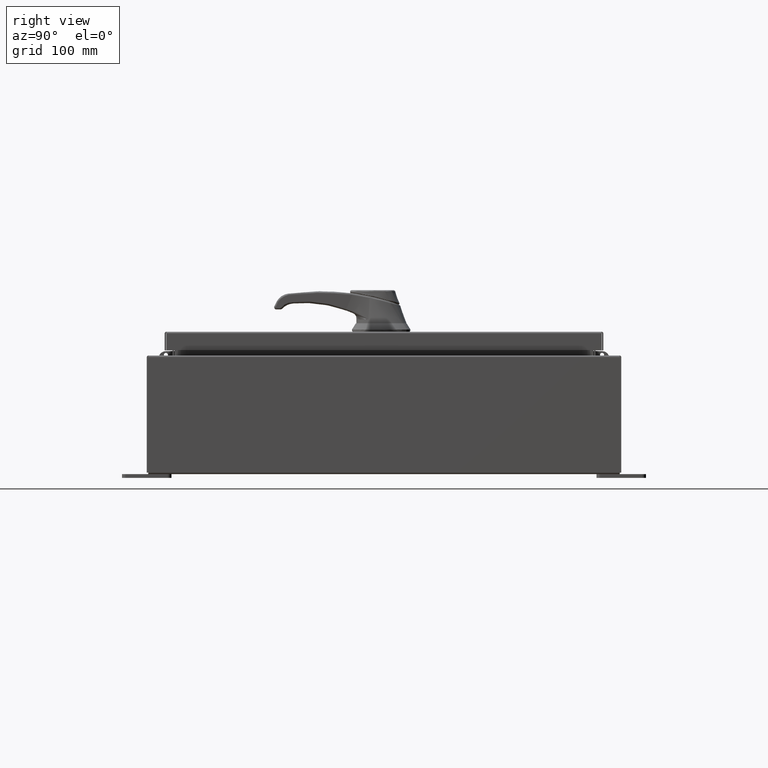
[diagram: clean part render]
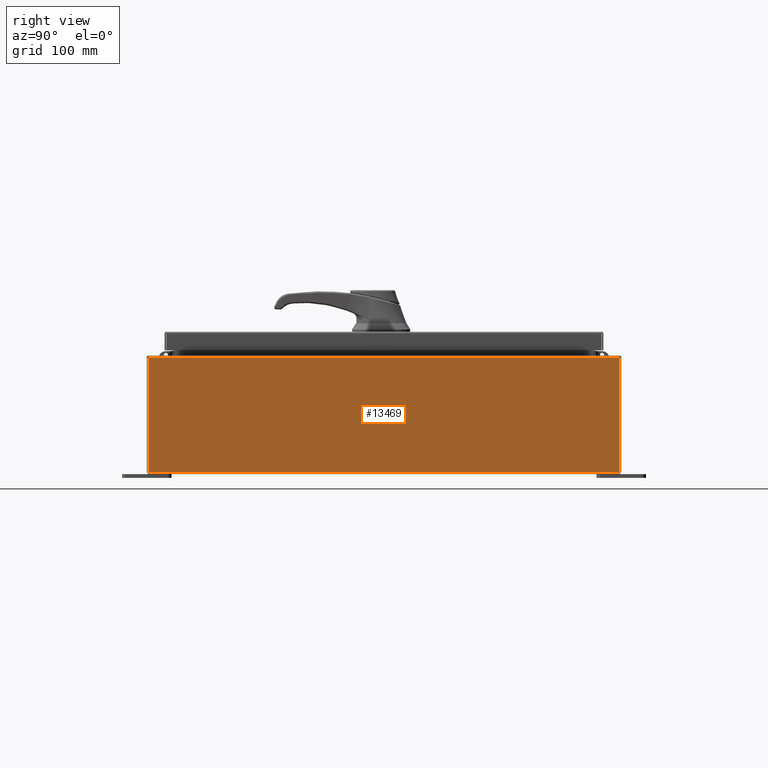
[diagram: same view with one face highlighted and labeled with its STEP entity id]
A machine part, right view. The second image highlights one B-rep face of the part: STEP entity #13469.
In plain terms, the highlighted planar face has unit normal (-1, 0, 0).
Its self-contained STEP definition (entity closure, byte-faithful):
#660 = EDGE_CURVE ( 'NONE', #19925, #47299, #36692, .T. ) ;
#3230 = VECTOR ( 'NONE', #99781, 39.37007874015748100 ) ;
#7395 = ORIENTED_EDGE ( 'NONE', *, *, #660, .T. ) ;
#8626 = EDGE_CURVE ( 'NONE', #68323, #47299, #34351, .T. ) ;
#9961 = CARTESIAN_POINT ( 'NONE',  ( 11.99999999999999800, 0.0000000000000000000, -4.009536492811464200E-014 ) ) ;
#11040 = VECTOR ( 'NONE', #61807, 39.37007874015748100 ) ;
#12378 = CARTESIAN_POINT ( 'NONE',  ( 12.00000000000001800, 11.92529999999999800, 5.837600000000001000 ) ) ;
#13469 = ADVANCED_FACE ( 'NONE', ( #26724 ), #71268, .F. ) ;
#14353 = ORIENTED_EDGE ( 'NONE', *, *, #88376, .T. ) ;
#19925 = VERTEX_POINT ( 'NONE', #28257 ) ;
#20880 = ORIENTED_EDGE ( 'NONE', *, *, #8626, .F. ) ;
#22667 = CARTESIAN_POINT ( 'NONE',  ( 11.99999999999999800, -11.92530000000000400, 0.01299999999999985900 ) ) ;
#26520 = LINE ( 'NONE', #12378, #3230 ) ;
#26724 = FACE_OUTER_BOUND ( 'NONE', #102446, .T. ) ;
#27223 = LINE ( 'NONE', #90282, #82135 ) ;
#27572 = DIRECTION ( 'NONE',  ( 3.319545939341922000E-015, 0.0000000000000000000, 1.000000000000000000 ) ) ;
#28075 = AXIS2_PLACEMENT_3D ( 'NONE', #9961, #80109, #27572 ) ;
#28257 = CARTESIAN_POINT ( 'NONE',  ( 12.00000000000001800, -11.92530000000000400, 5.837600000000001000 ) ) ;
#34351 = LINE ( 'NONE', #79068, #11040 ) ;
#36692 = LINE ( 'NONE', #47068, #77796 ) ;
#44053 = DIRECTION ( 'NONE',  ( -3.319545939341922800E-015, 0.0000000000000000000, -1.000000000000000000 ) ) ;
#47068 = CARTESIAN_POINT ( 'NONE',  ( 11.99999999999999800, -11.92530000000000400, -4.009536492811464200E-014 ) ) ;
#47299 = VERTEX_POINT ( 'NONE', #22667 ) ;
#59058 = VERTEX_POINT ( 'NONE', #61135 ) ;
#61135 = CARTESIAN_POINT ( 'NONE',  ( 12.00000000000001800, 11.92529999999999600, 5.837600000000001000 ) ) ;
#61807 = DIRECTION ( 'NONE',  ( -0.0000000000000000000, -1.000000000000000000, -0.0000000000000000000 ) ) ;
#67064 = ORIENTED_EDGE ( 'NONE', *, *, #81123, .T. ) ;
#67249 = DIRECTION ( 'NONE',  ( 3.319545939341922800E-015, 0.0000000000000000000, 1.000000000000000000 ) ) ;
#68323 = VERTEX_POINT ( 'NONE', #71555 ) ;
#71268 = PLANE ( 'NONE',  #28075 ) ;
#71555 = CARTESIAN_POINT ( 'NONE',  ( 11.99999999999999800, 11.92529999999999600, 0.01299999999999986400 ) ) ;
#77796 = VECTOR ( 'NONE', #44053, 39.37007874015748100 ) ;
#79068 = CARTESIAN_POINT ( 'NONE',  ( 11.99999999999999800, -11.92530000000000400, 0.01299999999999986400 ) ) ;
#80109 = DIRECTION ( 'NONE',  ( -1.000000000000000000, 0.0000000000000000000, 3.319545939341922000E-015 ) ) ;
#81123 = EDGE_CURVE ( 'NONE', #59058, #19925, #26520, .T. ) ;
#82135 = VECTOR ( 'NONE', #67249, 39.37007874015748100 ) ;
#88376 = EDGE_CURVE ( 'NONE', #68323, #59058, #27223, .T. ) ;
#90282 = CARTESIAN_POINT ( 'NONE',  ( 11.99999999999999800, 11.92529999999999800, -4.009536492811464200E-014 ) ) ;
#99781 = DIRECTION ( 'NONE',  ( -0.0000000000000000000, -1.000000000000000000, -0.0000000000000000000 ) ) ;
#102446 = EDGE_LOOP ( 'NONE', ( #67064, #7395, #20880, #14353 ) ) ;